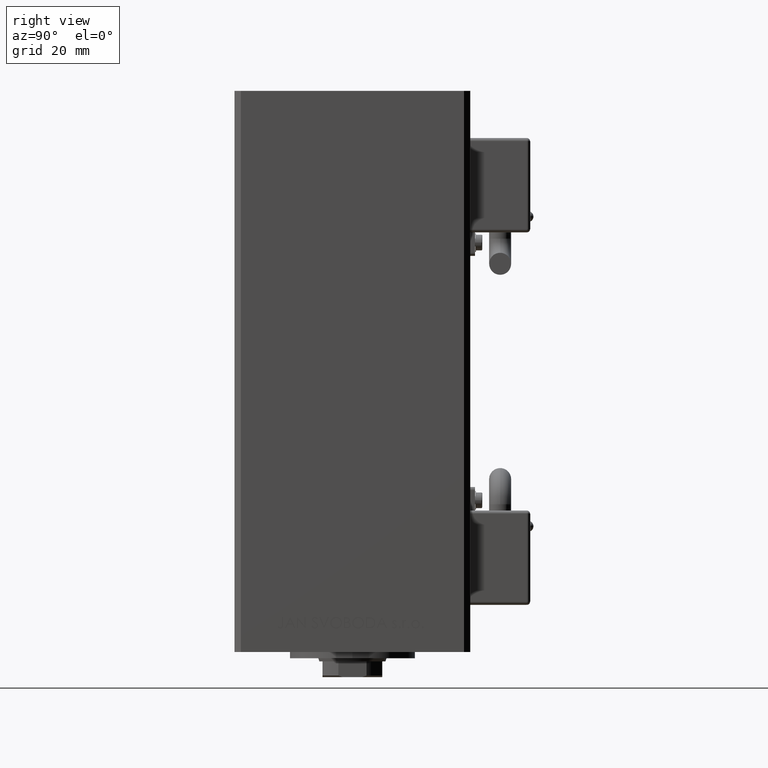
[diagram: clean part render]
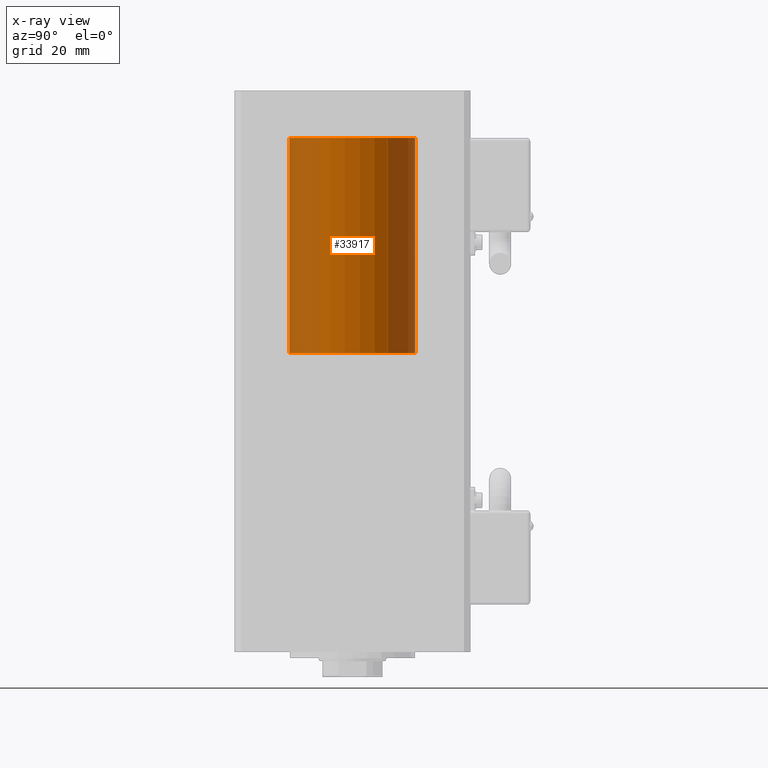
[diagram: x-ray — body ghosted, one internal face saturated and labeled with its STEP entity id]
A machine part, right view, then the same camera in x-ray: the body is ghosted and one INTERNAL B-rep face — a face not visible from any outside direction — is saturated and labeled: STEP entity #33917.
In plain terms, the highlighted cylindrical surface (partial cylindrical patch) has radius 20 mm, axis along (-0, -0, -1).
Its self-contained STEP definition (entity closure, byte-faithful):
#40 = VERTEX_POINT ( 'NONE', #22647 ) ;
#345 = CARTESIAN_POINT ( 'NONE',  ( -103.0000000000000000, -20.00000000000000711, 2.449293598294707302E-15 ) ) ;
#1989 = DIRECTION ( 'NONE',  ( 1.000000000000000000, -9.892608450469889463E-18, -0.000000000000000000 ) ) ;
#5023 = CARTESIAN_POINT ( 'NONE',  ( -103.0000000000000000, -7.157848055784085830E-16, 0.000000000000000000 ) ) ;
#5349 = LINE ( 'NONE', #32844, #15499 ) ;
#6526 = CARTESIAN_POINT ( 'NONE',  ( -171.5000000000000000, 19.99999999999999645, 0.000000000000000000 ) ) ;
#10616 = AXIS2_PLACEMENT_3D ( 'NONE', #16163, #48047, #38935 ) ;
#10761 = VERTEX_POINT ( 'NONE', #30892 ) ;
#11049 = EDGE_LOOP ( 'NONE', ( #46285, #46616, #41239, #36220 ) ) ;
#13890 = VERTEX_POINT ( 'NONE', #6526 ) ;
#14023 = LINE ( 'NONE', #38084, #50808 ) ;
#14040 = CARTESIAN_POINT ( 'NONE',  ( -171.5000000000000000, -3.814112672122127568E-17, 0.000000000000000000 ) ) ;
#14587 = VERTEX_POINT ( 'NONE', #345 ) ;
#15499 = VECTOR ( 'NONE', #44832, 1000.000000000000000 ) ;
#16163 = CARTESIAN_POINT ( 'NONE',  ( 0.000000000000000000, -1.734723475976807094E-15, 0.000000000000000000 ) ) ;
#16263 = DIRECTION ( 'NONE',  ( 1.000000000000000000, -9.892608450469889463E-18, -0.000000000000000000 ) ) ;
#22647 = CARTESIAN_POINT ( 'NONE',  ( -103.0000000000000000, 20.00000000000000355, 0.000000000000000000 ) ) ;
#24682 = AXIS2_PLACEMENT_3D ( 'NONE', #5023, #16263, #36947 ) ;
#25914 = EDGE_CURVE ( 'NONE', #13890, #10761, #43819, .T. ) ;
#27176 = EDGE_CURVE ( 'NONE', #40, #14587, #50554, .T. ) ;
#27805 = EDGE_CURVE ( 'NONE', #10761, #14587, #5349, .T. ) ;
#29754 = DIRECTION ( 'NONE',  ( 1.000000000000000000, -9.892608450469889463E-18, -0.000000000000000000 ) ) ;
#30892 = CARTESIAN_POINT ( 'NONE',  ( -171.5000000000000000, -19.99999999999999645, 2.449293598294706119E-15 ) ) ;
#32130 = CYLINDRICAL_SURFACE ( 'NONE', #10616, 19.99999999999999645 ) ;
#32844 = CARTESIAN_POINT ( 'NONE',  ( -1.978521690093977584E-16, -19.99999999999999645, 2.449293598294706119E-15 ) ) ;
#33917 = ADVANCED_FACE ( 'NONE', ( #39198 ), #32130, .T. ) ;
#36220 = ORIENTED_EDGE ( 'NONE', *, *, #37682, .F. ) ;
#36947 = DIRECTION ( 'NONE',  ( 0.000000000000000000, 1.000000000000000000, 0.000000000000000000 ) ) ;
#37682 = EDGE_CURVE ( 'NONE', #13890, #40, #14023, .T. ) ;
#38084 = CARTESIAN_POINT ( 'NONE',  ( 1.978521690093977584E-16, 19.99999999999999645, 0.000000000000000000 ) ) ;
#38935 = DIRECTION ( 'NONE',  ( 9.892608450469889463E-18, 1.000000000000000000, 0.000000000000000000 ) ) ;
#39198 = FACE_OUTER_BOUND ( 'NONE', #11049, .T. ) ;
#39655 = AXIS2_PLACEMENT_3D ( 'NONE', #14040, #29754, #46195 ) ;
#41239 = ORIENTED_EDGE ( 'NONE', *, *, #27176, .F. ) ;
#43819 = CIRCLE ( 'NONE', #39655, 19.99999999999999645 ) ;
#44832 = DIRECTION ( 'NONE',  ( 1.000000000000000000, -9.892608450469889463E-18, -0.000000000000000000 ) ) ;
#46195 = DIRECTION ( 'NONE',  ( 0.000000000000000000, 1.000000000000000000, 0.000000000000000000 ) ) ;
#46285 = ORIENTED_EDGE ( 'NONE', *, *, #25914, .T. ) ;
#46616 = ORIENTED_EDGE ( 'NONE', *, *, #27805, .T. ) ;
#48047 = DIRECTION ( 'NONE',  ( 1.000000000000000000, -9.892608450469889463E-18, -0.000000000000000000 ) ) ;
#50554 = CIRCLE ( 'NONE', #24682, 20.00000000000000355 ) ;
#50808 = VECTOR ( 'NONE', #1989, 1000.000000000000000 ) ;